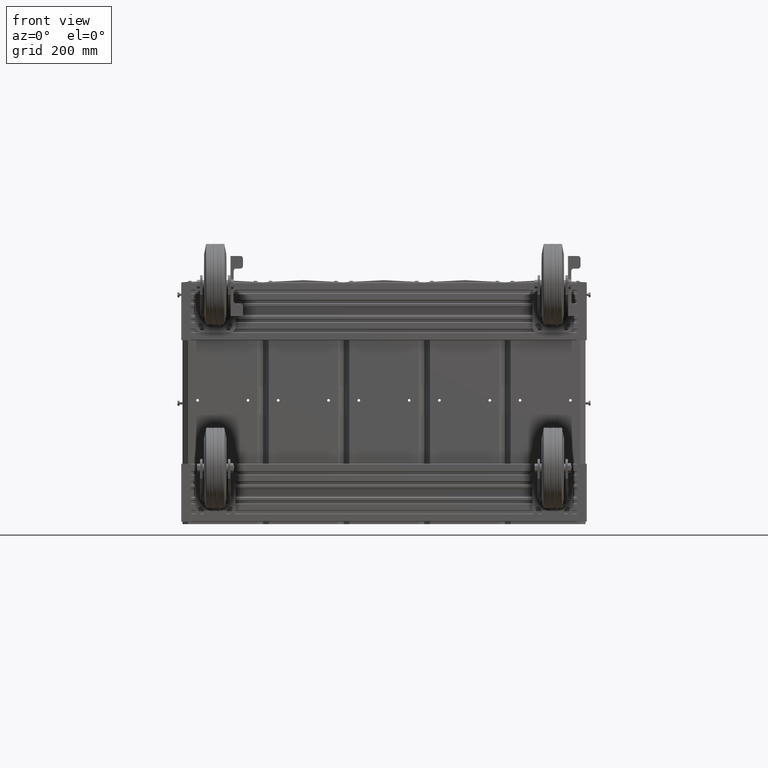
[diagram: clean part render]
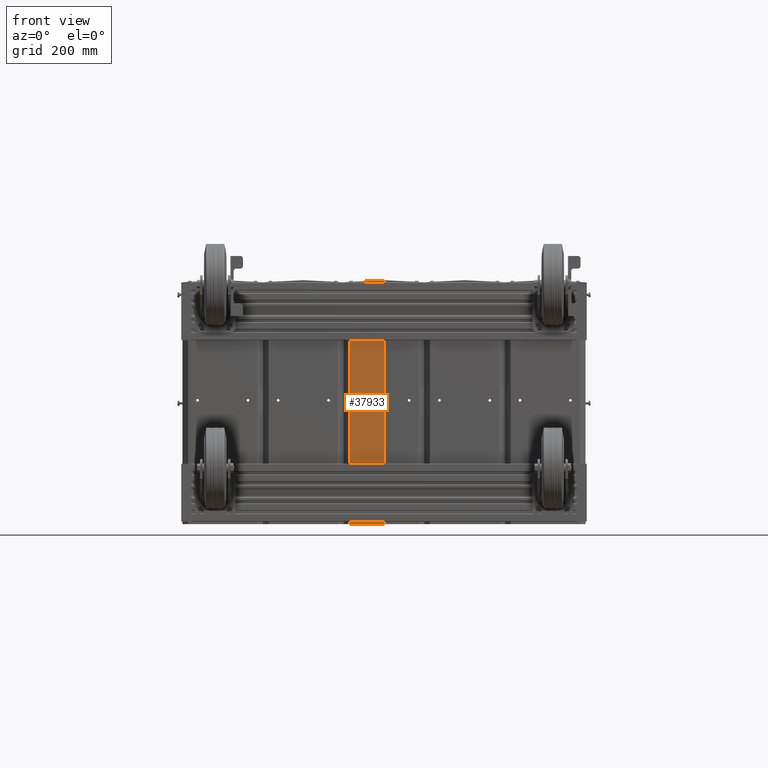
[diagram: same view with one face highlighted and labeled with its STEP entity id]
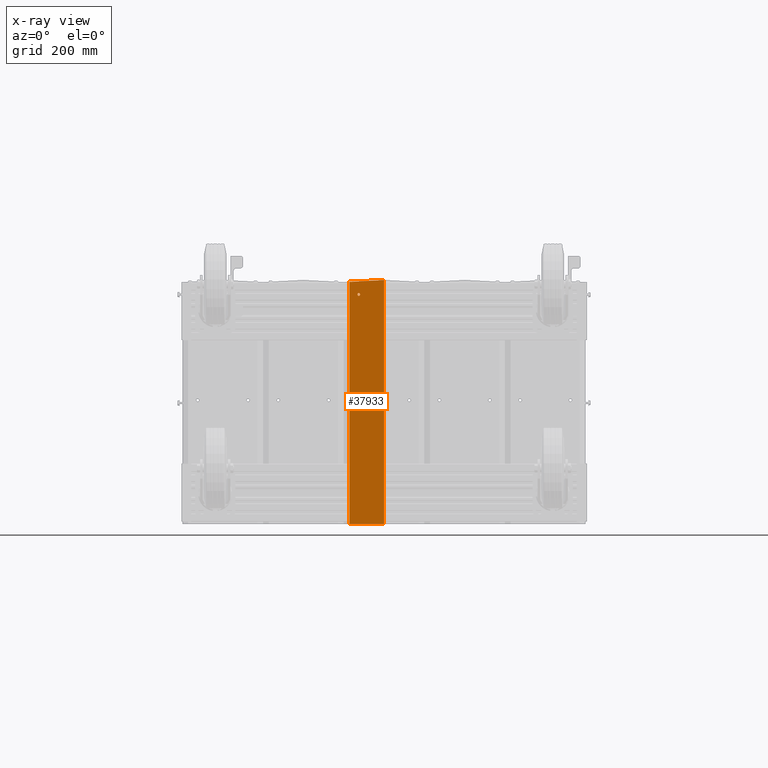
[diagram: x-ray of the same camera — body ghosted, the highlighted face saturated]
A machine part, front view. The second image highlights one B-rep face of the part: STEP entity #37933.
The next image is the same camera in x-ray: the body ghosted, the highlighted face saturated — about 0% of this face is hidden behind the body in this view.
In plain terms, the highlighted planar face has unit normal (0, 1, 0).
Its self-contained STEP definition (entity closure, byte-faithful):
#2268 = CIRCLE ( 'NONE', #42124, 0.1330000000000004800 ) ;
#2279 = CIRCLE ( 'NONE', #42128, 0.1329999999999999200 ) ;
#2336 = LINE ( 'NONE', #3958, #2342 ) ;
#2342 = VECTOR ( 'NONE', #3961, 39.37007874015748100 ) ;
#2375 = LINE ( 'NONE', #4006, #2392 ) ;
#2392 = VECTOR ( 'NONE', #4015, 39.37007874015748100 ) ;
#2411 = LINE ( 'NONE', #4042, #2422 ) ;
#2420 = LINE ( 'NONE', #4045, #2421 ) ;
#2421 = VECTOR ( 'NONE', #4046, 39.37007874015748100 ) ;
#2422 = VECTOR ( 'NONE', #4048, 39.37007874015748100 ) ;
#2425 = CIRCLE ( 'NONE', #42149, 0.1329999999999999200 ) ;
#2427 = CIRCLE ( 'NONE', #42148, 0.1330000000000004800 ) ;
#3776 = CARTESIAN_POINT ( 'NONE',  ( -3.999999999999996900, -2.500000000000000000, -0.1745312499999990000 ) ) ;
#3779 = DIRECTION ( 'NONE',  ( -1.000000000000000000, -1.365923996832082300E-016, 0.0000000000000000000 ) ) ;
#3781 = DIRECTION ( 'NONE',  ( 0.0000000000000000000, -1.000000000000000000, 0.0000000000000000000 ) ) ;
#3820 = CARTESIAN_POINT ( 'NONE',  ( -3.999999999999826400, -2.500000000000000000, -10.67453125000007900 ) ) ;
#3823 = DIRECTION ( 'NONE',  ( -1.000000000000000000, -1.365923996832082300E-016, 0.0000000000000000000 ) ) ;
#3825 = DIRECTION ( 'NONE',  ( 0.0000000000000000000, -1.000000000000000000, 0.0000000000000000000 ) ) ;
#3958 = CARTESIAN_POINT ( 'NONE',  ( -4.000000000000000900, 0.0000000000000000000, 12.10499999999992000 ) ) ;
#3961 = DIRECTION ( 'NONE',  ( 0.0000000000000000000, 0.0000000000000000000, 1.000000000000000000 ) ) ;
#4006 = CARTESIAN_POINT ( 'NONE',  ( -4.000000000000123500, 3.999999999999983600, 12.10499999999992000 ) ) ;
#4015 = DIRECTION ( 'NONE',  ( 1.365923996832180900E-016, -1.000000000000000000, -1.094764425253763300E-047 ) ) ;
#4042 = CARTESIAN_POINT ( 'NONE',  ( -3.999999999999852600, -4.000000000000000900, -11.89500000000007800 ) ) ;
#4044 = CARTESIAN_POINT ( 'NONE',  ( -3.999999999999996900, -2.500000000000000000, -0.1745312499999990000 ) ) ;
#4045 = CARTESIAN_POINT ( 'NONE',  ( -3.999999999999988000, -3.437500000000004900, 12.10499999999992000 ) ) ;
#4046 = DIRECTION ( 'NONE',  ( 0.0000000000000000000, 0.0000000000000000000, 1.000000000000000000 ) ) ;
#4047 = CARTESIAN_POINT ( 'NONE',  ( -3.999999999999826400, -2.500000000000000000, -10.67453125000007900 ) ) ;
#4048 = DIRECTION ( 'NONE',  ( -4.948869585097442600E-030, 0.9986247173150795100, -0.05242779765904172200 ) ) ;
#4050 = DIRECTION ( 'NONE',  ( -1.000000000000000000, -1.365923996832082300E-016, 0.0000000000000000000 ) ) ;
#4051 = DIRECTION ( 'NONE',  ( 0.0000000000000000000, -1.000000000000000000, 0.0000000000000000000 ) ) ;
#4053 = DIRECTION ( 'NONE',  ( -1.000000000000000000, -1.365923996832082300E-016, 0.0000000000000000000 ) ) ;
#4054 = DIRECTION ( 'NONE',  ( 0.0000000000000000000, -1.000000000000000000, 0.0000000000000000000 ) ) ;
#6792 = FACE_BOUND ( 'NONE', #27319, .T. ) ;
#6796 = FACE_BOUND ( 'NONE', #27253, .T. ) ;
#6799 = FACE_OUTER_BOUND ( 'NONE', #27248, .T. ) ;
#8285 = CARTESIAN_POINT ( 'NONE',  ( -4.000000000000123500, 3.999999999999983600, 12.10499999999992000 ) ) ;
#8290 = PLANE ( 'NONE',  #8950 ) ;
#8291 = DIRECTION ( 'NONE',  ( 1.000000000000000000, 1.365923996832180900E-016, 1.079521069386805600E-076 ) ) ;
#8292 = DIRECTION ( 'NONE',  ( -1.365923996832180900E-016, 1.000000000000000000, 1.094764425253763300E-047 ) ) ;
#8950 = AXIS2_PLACEMENT_3D ( 'NONE', #8285, #8291, #8292 ) ;
#18631 = VERTEX_POINT ( 'NONE', #33812 ) ;
#18632 = VERTEX_POINT ( 'NONE', #33813 ) ;
#18639 = VERTEX_POINT ( 'NONE', #33820 ) ;
#18640 = VERTEX_POINT ( 'NONE', #33821 ) ;
#18669 = VERTEX_POINT ( 'NONE', #33850 ) ;
#18671 = VERTEX_POINT ( 'NONE', #33852 ) ;
#19555 = VERTEX_POINT ( 'NONE', #34216 ) ;
#19566 = VERTEX_POINT ( 'NONE', #34227 ) ;
#27248 = EDGE_LOOP ( 'NONE', ( #30783, #30785, #30787, #30789 ) ) ;
#27253 = EDGE_LOOP ( 'NONE', ( #30775, #30777 ) ) ;
#27319 = EDGE_LOOP ( 'NONE', ( #30779, #30781 ) ) ;
#29097 = EDGE_CURVE ( 'NONE', #18631, #18632, #2268, .T. ) ;
#29105 = EDGE_CURVE ( 'NONE', #18639, #18640, #2279, .T. ) ;
#29146 = EDGE_CURVE ( 'NONE', #18669, #18671, #2336, .T. ) ;
#29172 = EDGE_CURVE ( 'NONE', #18671, #19555, #2375, .T. ) ;
#29187 = EDGE_CURVE ( 'NONE', #19566, #19555, #2420, .T. ) ;
#29188 = EDGE_CURVE ( 'NONE', #19566, #18669, #2411, .T. ) ;
#29189 = EDGE_CURVE ( 'NONE', #18640, #18639, #2425, .T. ) ;
#29190 = EDGE_CURVE ( 'NONE', #18632, #18631, #2427, .T. ) ;
#30775 = ORIENTED_EDGE ( 'NONE', *, *, #29189, .F. ) ;
#30777 = ORIENTED_EDGE ( 'NONE', *, *, #29105, .F. ) ;
#30779 = ORIENTED_EDGE ( 'NONE', *, *, #29190, .F. ) ;
#30781 = ORIENTED_EDGE ( 'NONE', *, *, #29097, .F. ) ;
#30783 = ORIENTED_EDGE ( 'NONE', *, *, #29146, .F. ) ;
#30785 = ORIENTED_EDGE ( 'NONE', *, *, #29188, .F. ) ;
#30787 = ORIENTED_EDGE ( 'NONE', *, *, #29187, .T. ) ;
#30789 = ORIENTED_EDGE ( 'NONE', *, *, #29172, .F. ) ;
#33812 = CARTESIAN_POINT ( 'NONE',  ( -3.999999999999996900, -2.367000000000000000, -0.1745312500000018000 ) ) ;
#33813 = CARTESIAN_POINT ( 'NONE',  ( -3.999999999999996900, -2.633000000000000500, -0.1745312499999990000 ) ) ;
#33820 = CARTESIAN_POINT ( 'NONE',  ( -3.999999999999826400, -2.367000000000000400, -10.67453124999990000 ) ) ;
#33821 = CARTESIAN_POINT ( 'NONE',  ( -3.999999999999826400, -2.633000000000000000, -10.67453125000007900 ) ) ;
#33850 = CARTESIAN_POINT ( 'NONE',  ( -3.999999999999992500, 0.0000000000000000000, -12.10500000000007900 ) ) ;
#33852 = CARTESIAN_POINT ( 'NONE',  ( -4.000000000000000900, 0.0000000000000000000, 12.10499999999992000 ) ) ;
#34216 = CARTESIAN_POINT ( 'NONE',  ( -3.999999999999988000, -3.437500000000004900, 12.10499999999992000 ) ) ;
#34227 = CARTESIAN_POINT ( 'NONE',  ( -3.999999999999852600, -3.437500000000004900, -11.92453125000007900 ) ) ;
#37933 = ADVANCED_FACE ( 'NONE', ( #6796, #6792, #6799 ), #8290, .F. ) ;
#42124 = AXIS2_PLACEMENT_3D ( 'NONE', #3776, #3779, #3781 ) ;
#42128 = AXIS2_PLACEMENT_3D ( 'NONE', #3820, #3823, #3825 ) ;
#42148 = AXIS2_PLACEMENT_3D ( 'NONE', #4044, #4053, #4054 ) ;
#42149 = AXIS2_PLACEMENT_3D ( 'NONE', #4047, #4050, #4051 ) ;